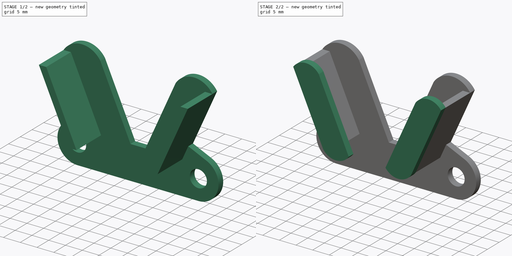
[diagram: build sequence overview — one tinted view per stage of 2, left to right]
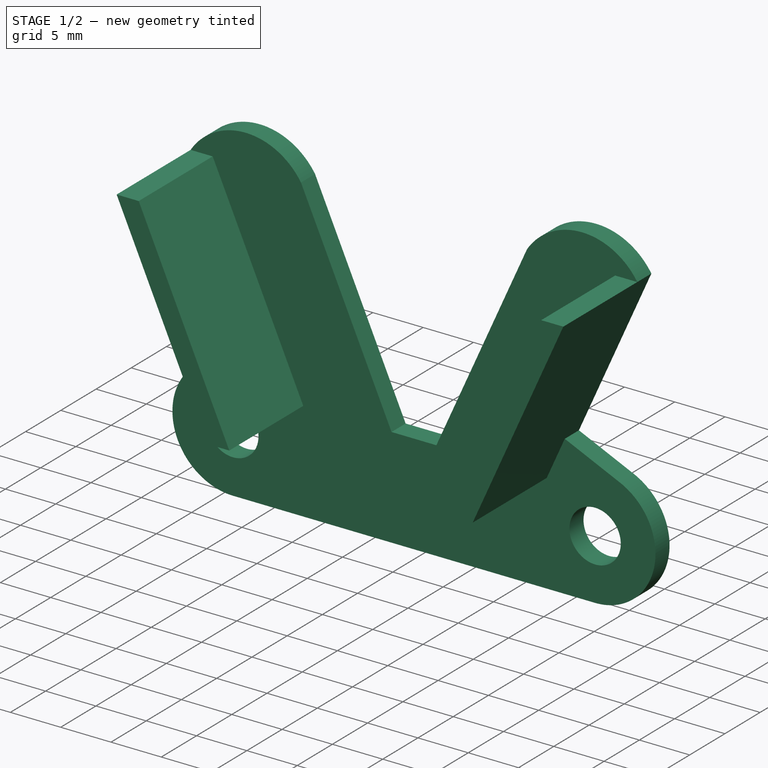
[diagram: stage 1 of 2 — iso view after this stage's code; geometry added in this stage tinted green]
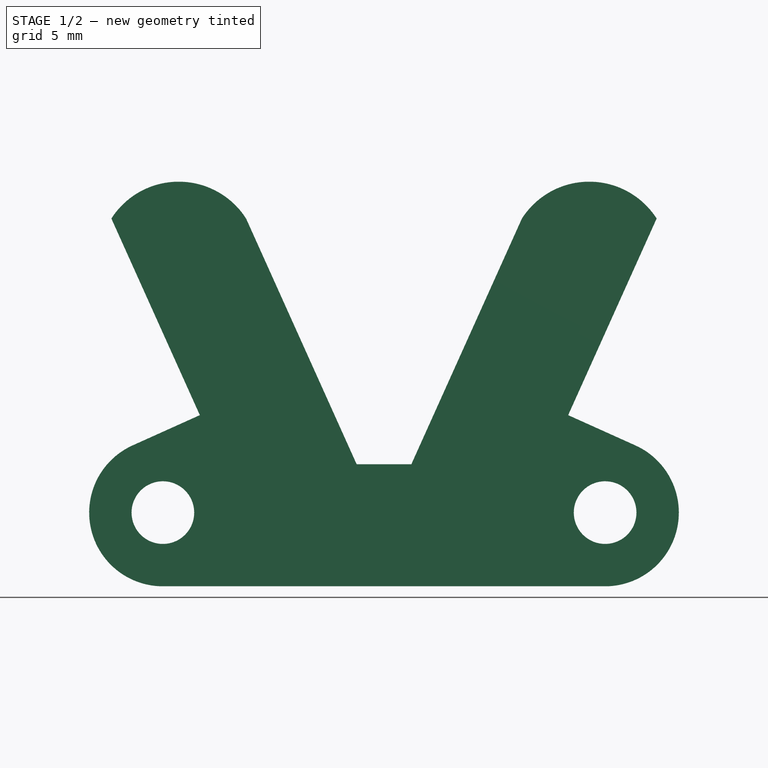
[diagram: stage 1 of 2 — front view after this stage's code; geometry added in this stage tinted green]
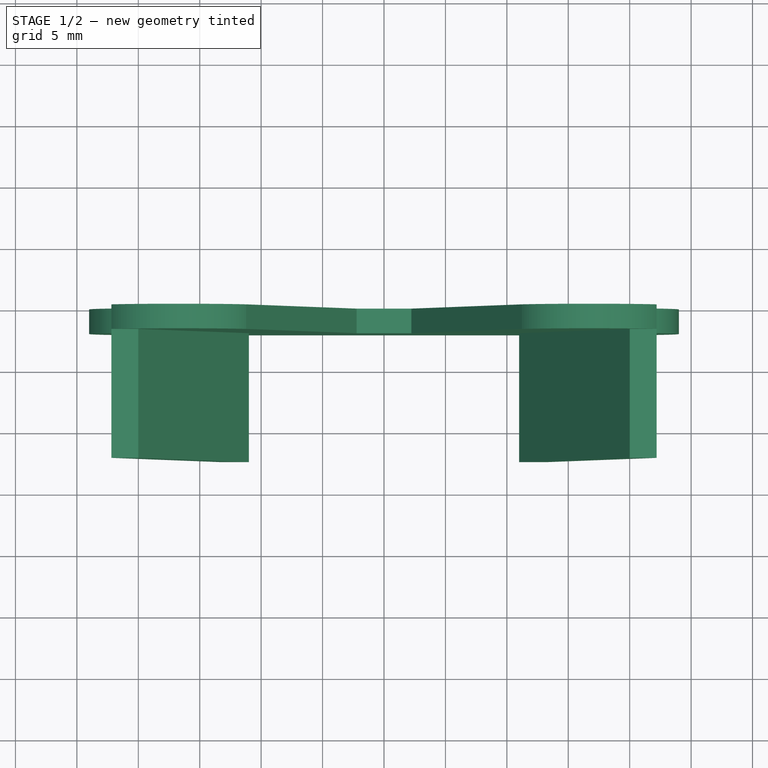
[diagram: stage 1 of 2 — top view after this stage's code; geometry added in this stage tinted green]
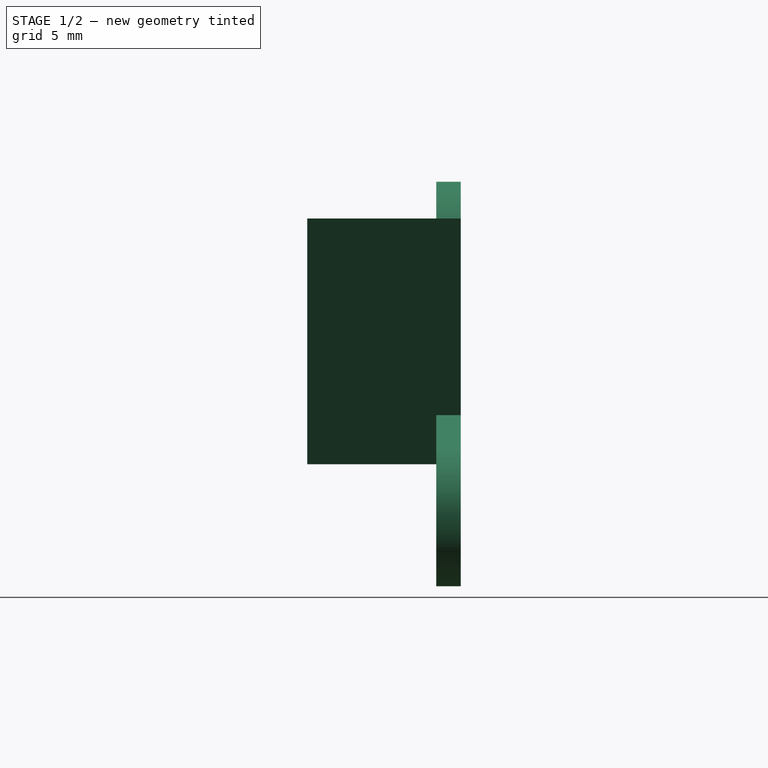
[diagram: stage 1 of 2 — right view after this stage's code; geometry added in this stage tinted green]
FCSTD DOCUMENT  (FreeCAD 0.20R29603 (Git))
Label: plier
License: All rights reserved
LicenseURL: http://en.wikipedia.org/wiki/All_rights_reserved
objects: Sketcher::SketchObject×3, PartDesign::Pad×3, PartDesign::Body×1
note: 10 computed .brp shape members not serialized (recipe doc carries the construction recipe); baked Part::Feature solids carry a one-line shape summary decoded from their .brp

FEATURE [Sketcher::SketchObject] Sketch
  FullyConstrained = false
  MapMode = 5
  Placement = pos=(0,0,0) rot=(1,0,0;1.5708rad)
  Support = -> [XZ_Plane]
  sketch-geometry (22):
    g0: Circle CenterX=-18 CenterY=-3.9393 CenterZ=0 NormalX=0 NormalY=0 NormalZ=1 AngleXU=0 Radius=2.55
    g1: LineSegment StartX=-20 StartY=20 StartZ=0 EndX=-11 EndY=0 EndZ=0
    g2: LineSegment StartX=20 StartY=20 StartZ=0 EndX=11 EndY=0 EndZ=0
    g3: LineSegment StartX=-27.6082 StartY=20 StartZ=0 EndX=29.7544 EndY=20 EndZ=0
    g4: LineSegment StartX=-22.1932 StartY=20 StartZ=0 EndX=-14.9907 EndY=3.99442 EndZ=0
    g5: LineSegment StartX=22.1932 StartY=20 StartZ=0 EndX=14.9907 EndY=3.99442 EndZ=0
    g6: LineSegment StartX=-11.2273 StartY=20 StartZ=0 EndX=-2.22732 EndY=0 EndZ=0
    g7: LineSegment StartX=11.2273 StartY=20 StartZ=0 EndX=2.22732 EndY=0 EndZ=0
    g8: LineSegment StartX=-30.9396 StartY=23 StartZ=0 EndX=29.7544 EndY=23 EndZ=0
    g9: ArcOfCircle CenterX=-16.7102 CenterY=16.4896 CenterZ=0 NormalX=0 NormalY=0 NormalZ=1 AngleXU=0 Radius=6.51042 StartAngle=0.569487 EndAngle=2.57211
    g10: ArcOfCircle CenterX=16.7102 CenterY=16.4896 CenterZ=0 NormalX=0 NormalY=0 NormalZ=1 AngleXU=0 Radius=6.51042 StartAngle=0.569487 EndAngle=2.57211
    g11: LineSegment StartX=-2.22732 StartY=0 StartZ=0 EndX=2.22732 EndY=0 EndZ=0
    g12: Circle CenterX=18 CenterY=-3.9393 CenterZ=0 NormalX=0 NormalY=0 NormalZ=1 AngleXU=0 Radius=2.55
    g13: LineSegment StartX=-14.9907 StartY=3.99442 StartZ=0 EndX=-20.4622 EndY=1.53223 EndZ=0
    g14: LineSegment StartX=-18 StartY=-9.9393 StartZ=0 EndX=18 EndY=-9.9393 EndZ=0
    g15: LineSegment StartX=-18 StartY=-3.9393 StartZ=0 EndX=-18 EndY=-21.2592 EndZ=0
    g16: LineSegment StartX=14.9907 StartY=3.99442 StartZ=0 EndX=20.4622 EndY=1.53223 EndZ=0
    g17: LineSegment StartX=29.7544 StartY=24.2232 StartZ=0 EndX=29.7544 EndY=18.0043 EndZ=0
    g18: ArcOfCircle CenterX=-18 CenterY=-3.9393 CenterZ=0 NormalX=0 NormalY=0 NormalZ=1 AngleXU=0 Radius=6 StartAngle=1.99365 EndAngle=4.71239
    g19: ArcOfCircle CenterX=18 CenterY=-3.9393 CenterZ=0 NormalX=0 NormalY=0 NormalZ=1 AngleXU=0 Radius=6 StartAngle=4.71239 EndAngle=7.43113
    g20: LineSegment StartX=-18 StartY=-3.9393 StartZ=0 EndX=-20.4622 EndY=1.53223 EndZ=0
    g21: LineSegment StartX=18 StartY=-3.9393 StartZ=0 EndX=20.4622 EndY=1.53223 EndZ=0
  constraints (64):
    c: Distance(g1,g2) = 22
    c: Distance(g1,g2) = 40
    c: Horizontal(g3)
    c: PointOnObject(g1,g3)
    c: PointOnObject(g2,g3)
    c: PointOnObject(g2,g-1)
    c: PointOnObject(g1,g-1)
    c: Distance(g3,g-1) = 20
    c: Distance(g1,g-2) = 11
    c: Distance(g1,g-2) = 20
    c: PointOnObject(g5,g3)
    c: PointOnObject(g4,g3)
    c: Parallel(g4,g1)
    c: Parallel(g5,g2)
    c: Distance(g6,g4) = 10
    c: Parallel(g6,g4)
    c: PointOnObject(g6,g3)
    c: PointOnObject(g6,g-1)
    c: PointOnObject(g7,g-1)
    c: PointOnObject(g7,g3)
    c: Parallel(g7,g2)
    c: Coincident(g9,g6)
    c: Coincident(g9,g4)
    c: Tangent(g9,g8)
    c: Coincident(g10,g7)
    c: Coincident(g10,g5)
    c: Tangent(g10,g8)
    c: Horizontal(g8)
    c: Distance(g8,g3) = 3
    c: Diameter(g12) = 5.1
    c: Diameter(g0) = 5.1
    c: Horizontal(g12,g0)
    c: DistanceX(g0,g12) = 36
    c: Horizontal(g14)
    c: Perpendicular(g2,g16)
    c: Coincident(g15,g0)
    c: Vertical(g15)
    c: PointOnObject(g14,g15)
    c: Coincident(g5,g16)
    c: Vertical(g17)
    c: PointOnObject(g8,g17)
    c: PointOnObject(g3,g17)
    c: Perpendicular(g4,g13) = 4.71239
    c: Coincident(g18,g13)
    c: Coincident(g18,g14)
    c: Coincident(g18,g0)
    c: Distance(g4,g1) = 2
    c: Distance(g5,g2) = 2
    c: Distance(g5,g7) = 10
    c: Coincident(g6,g11)
    c: Coincident(g7,g11)
    c: Coincident(g14,g19)
    c: Parallel(g20,g1)
    c: Coincident(g13,g20)
    c: Distance(g20) = 6
    c: Coincident(g20,g18)
    c: Coincident(g16,g19)
    c: Coincident(g21,g12)
    c: Coincident(g21,g16)
    c: Parallel(g21,g2)
    c: Distance(g21,g-2) = 18
    c: Distance(g21) = 6
    c: Coincident(g19,g21)
    c: Distance(g19,g5) = 6
FEATURE [PartDesign::Pad] Pad
  Direction = (0,-1,2e-16)
  Length = 2
  Length2 = 10
  Placement = pos=(0,0,0) rot=(1,0,0;1.5708rad)
  Profile = -> Sketch
  ReferenceAxis = -> Sketch [N_Axis]
  Type = 0
FEATURE [Sketcher::SketchObject] Sketch001
  FullyConstrained = false
  MapMode = 5
  Placement = pos=(0,-2,4e-16) rot=(1,0,0;1.5708rad)
  Support = -> [Pad]
  sketch-geometry (9):
    g0: LineSegment StartX=-20 StartY=20 StartZ=0 EndX=-11 EndY=0 EndZ=0
    g1: LineSegment StartX=20 StartY=20 StartZ=0 EndX=11 EndY=0 EndZ=0
    g2: LineSegment StartX=-30.8932 StartY=20 StartZ=0 EndX=26.982 EndY=20 EndZ=0
    g3: LineSegment StartX=-22.1932 StartY=20 StartZ=0 EndX=-13.1932 EndY=0 EndZ=0
    g4: LineSegment StartX=22.1932 StartY=20 StartZ=0 EndX=13.1932 EndY=0 EndZ=0
    g5: LineSegment StartX=-22.1932 StartY=20 StartZ=0 EndX=-20 EndY=20 EndZ=0
    g6: LineSegment StartX=20 StartY=20 StartZ=0 EndX=22.1932 EndY=20 EndZ=0
    g7: LineSegment StartX=-13.1932 StartY=0 StartZ=0 EndX=-11 EndY=0 EndZ=0
    g8: LineSegment StartX=11 StartY=0 StartZ=0 EndX=13.1932 EndY=0 EndZ=0
  constraints (26):
    c: Distance(g0,g1) = 22
    c: Distance(g0,g1) = 40
    c: Horizontal(g2)
    c: PointOnObject(g0,g2)
    c: PointOnObject(g1,g2)
    c: PointOnObject(g1,g-1)
    c: PointOnObject(g0,g-1)
    c: Distance(g2,g-1) = 20
    c: Distance(g0,g-2) = 11
    c: Distance(g0,g-2) = 20
    c: PointOnObject(g3,g2)
    c: PointOnObject(g4,g2)
    c: PointOnObject(g4,g-1)
    c: PointOnObject(g3,g-1)
    c: Distance(g3,g0) = 2
    c: Distance(g4,g1) = 2
    c: Parallel(g3,g0)
    c: Parallel(g4,g1)
    c: Coincident(g5,g0)
    c: Coincident(g5,g3)
    c: Coincident(g6,g1)
    c: Coincident(g6,g4)
    c: Coincident(g7,g3)
    c: Coincident(g7,g0)
    c: Coincident(g8,g1)
    c: Coincident(g8,g4)
FEATURE [PartDesign::Pad] Pad001
  BaseFeature = -> Pad
  Direction = (0,-1,2e-16)
  Length = 10.5
  Length2 = 10
  Placement = pos=(0,0,0) rot=(1,0,0;1.5708rad)
  Profile = -> Sketch001
  ReferenceAxis = -> Sketch001 [N_Axis]
  Type = 0
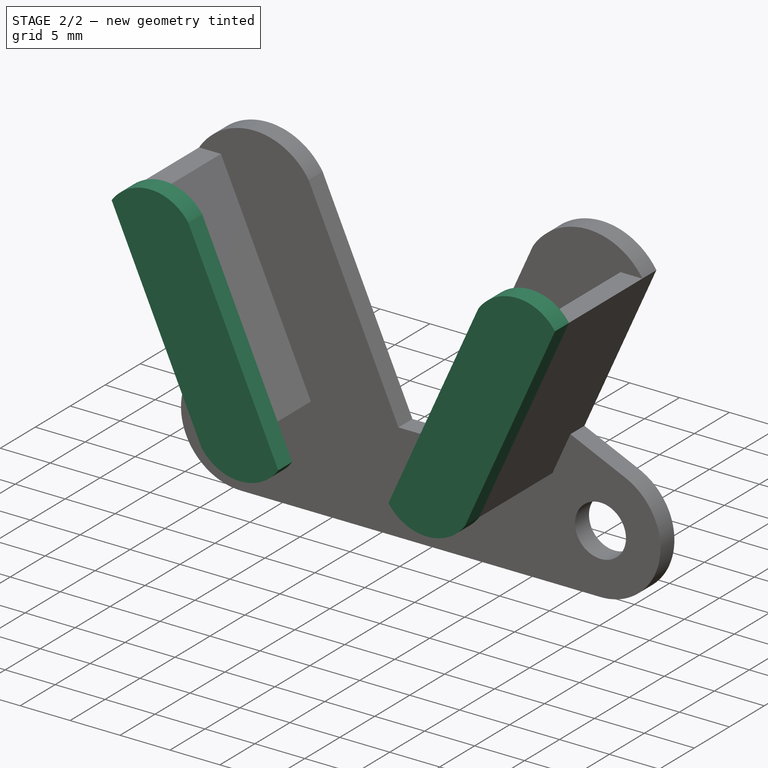
[diagram: stage 2 of 2 — iso view after this stage's code; geometry added in this stage tinted green]
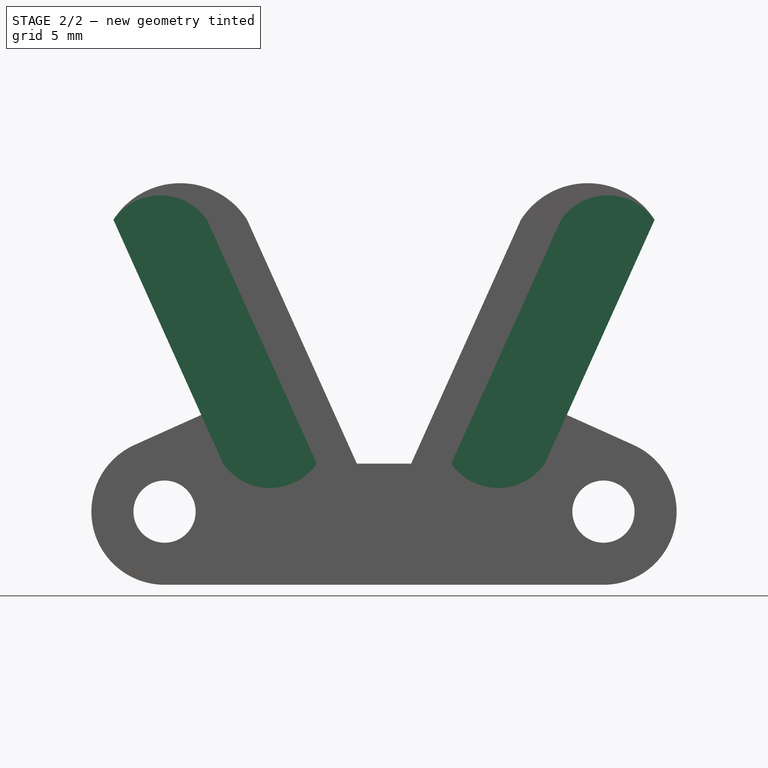
[diagram: stage 2 of 2 — front view after this stage's code; geometry added in this stage tinted green]
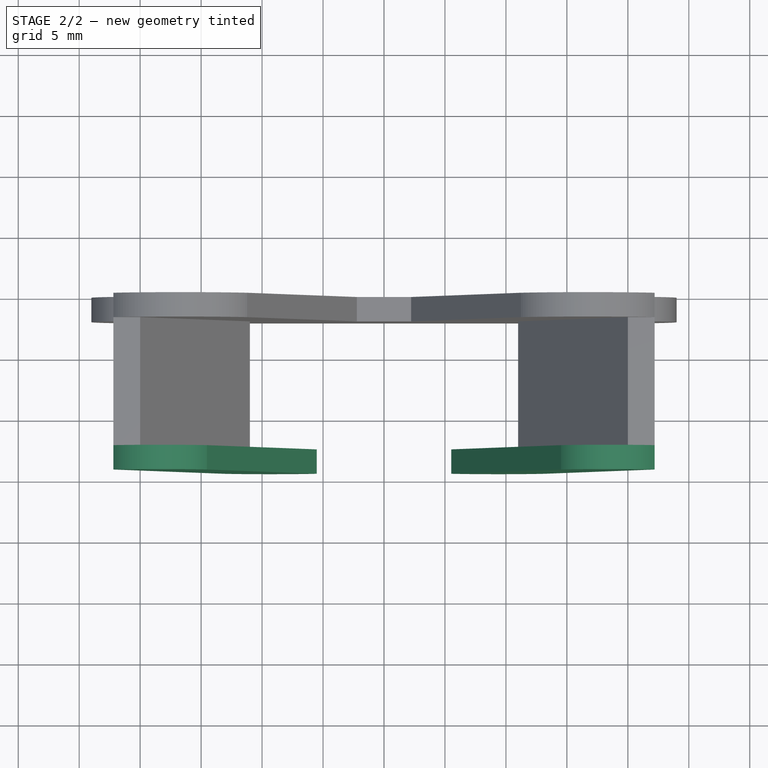
[diagram: stage 2 of 2 — top view after this stage's code; geometry added in this stage tinted green]
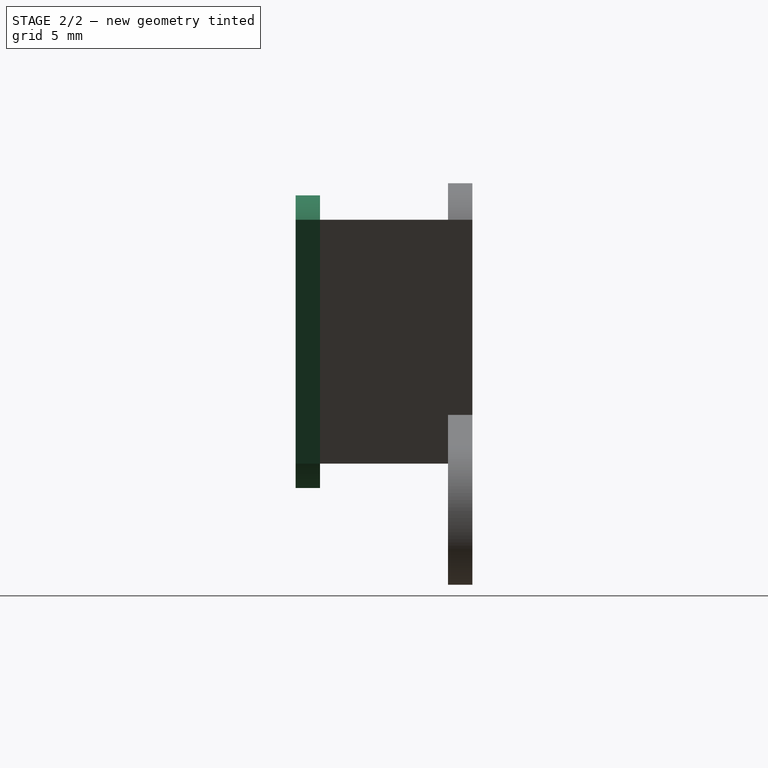
[diagram: stage 2 of 2 — right view after this stage's code; geometry added in this stage tinted green]
FEATURE [Sketcher::SketchObject] Sketch002
  FullyConstrained = false
  MapMode = 5
  Placement = pos=(0,-12.5,2.8e-15) rot=(1,0,0;1.5708rad)
  Support = -> [Pad001]
  sketch-geometry (14):
    g0: LineSegment StartX=-30.1767 StartY=20 StartZ=0 EndX=27.2113 EndY=20 EndZ=0
    g1: LineSegment StartX=-30.1767 StartY=0 StartZ=0 EndX=27.2113 EndY=0 EndZ=0
    g2: LineSegment StartX=-30.1767 StartY=22 StartZ=0 EndX=27.2113 EndY=22 EndZ=0
    g3: LineSegment StartX=-30.1767 StartY=-2 StartZ=0 EndX=27.2113 EndY=-2 EndZ=0
    g4: LineSegment StartX=-22.1932 StartY=20 StartZ=0 EndX=-13.1932 EndY=0 EndZ=0
    g5: LineSegment StartX=-20 StartY=20 StartZ=0 EndX=-11 EndY=0 EndZ=0
    g6: LineSegment StartX=20 StartY=20 StartZ=0 EndX=11 EndY=0 EndZ=0
    g7: LineSegment StartX=22.1932 StartY=20 StartZ=0 EndX=13.1932 EndY=-1.6556e-12 EndZ=0
    g8: LineSegment StartX=-14.5171 StartY=20 StartZ=0 EndX=-5.51707 EndY=0 EndZ=0
    g9: LineSegment StartX=14.5171 StartY=20 StartZ=0 EndX=5.51707 EndY=-1.6556e-12 EndZ=0
    g10: ArcOfCircle CenterX=-18.3551 CenterY=17.3173 CenterZ=0 NormalX=0 NormalY=0 NormalZ=1 AngleXU=0 Radius=4.68266 StartAngle=0.61003 EndAngle=2.53156
    g11: ArcOfCircle CenterX=18.3551 CenterY=17.3173 CenterZ=0 NormalX=0 NormalY=0 NormalZ=1 AngleXU=0 Radius=4.68266 StartAngle=0.61003 EndAngle=2.53156
    g12: ArcOfCircle CenterX=-9.35512 CenterY=2.68266 CenterZ=0 NormalX=0 NormalY=0 NormalZ=1 AngleXU=0 Radius=4.68266 StartAngle=3.75162 EndAngle=5.67316
    g13: ArcOfCircle CenterX=9.35512 CenterY=2.68266 CenterZ=0 NormalX=0 NormalY=0 NormalZ=1 AngleXU=0 Radius=4.68266 StartAngle=3.75162 EndAngle=5.67316
  constraints (50):
    c: Horizontal(g2)
    c: Horizontal(g0)
    c: Horizontal(g1)
    c: Horizontal(g3)
    c: Vertical(g1,g3)
    c: Vertical(g3,g0)
    c: Vertical(g0,g2)
    c: Vertical(g0,g1)
    c: Vertical(g1,g2)
    c: Vertical(g2,g3)
    c: Parallel(g4,g5)
    c: Parallel(g6,g7)
    c: PointOnObject(g7,g0)
    c: PointOnObject(g6,g0)
    c: PointOnObject(g5,g0)
    c: PointOnObject(g4,g0)
    c: PointOnObject(g4,g1)
    c: PointOnObject(g5,g1)
    c: PointOnObject(g6,g1)
    c: PointOnObject(g7,g1)
    c: Distance(g0,g-1) = 20
    c: PointOnObject(g1,g-1)
    c: DistanceX(g5,g6) = 22
    c: DistanceX(g5,g-1) = 11
    c: DistanceX(g5,g6) = 40
    c: Distance(g5,g-2) = 20
    c: Distance(g4,g5) = 2
    c: Distance(g7,g6) = 2
    c: Distance(g6,g9) = 5
    c: Distance(g5,g8) = 5
    c: PointOnObject(g9,g0)
    c: PointOnObject(g8,g0)
    c: PointOnObject(g8,g1)
    c: PointOnObject(g9,g1)
    c: Parallel(g9,g6)
    c: Parallel(g8,g5)
    c: Coincident(g11,g9)
    c: Coincident(g11,g7)
    c: Coincident(g10,g8)
    c: Coincident(g10,g4)
    c: Tangent(g10,g2)
    c: Tangent(g11,g2)
    c: Distance(g2,g0) = 2
    c: Coincident(g13,g9)
    c: Coincident(g13,g7)
    c: Coincident(g12,g8)
    c: Coincident(g12,g4)
    c: Distance(g3,g-1) = 2
    c: Tangent(g12,g3)
    c: Tangent(g13,g3)
FEATURE [PartDesign::Pad] Pad002
  BaseFeature = -> Pad001
  Direction = (0,-1,2e-16)
  Length = 2
  Length2 = 10
  Placement = pos=(0,0,0) rot=(1,0,0;1.5708rad)
  Profile = -> Sketch002
  ReferenceAxis = -> Sketch002 [N_Axis]
  Type = 0
FEATURE [PartDesign::Body] Body
  Group = -> [Sketch,Sketch001,Pad,Pad001,Sketch002,Pad002]
  Origin = -> Origin
  Tip = -> Pad002
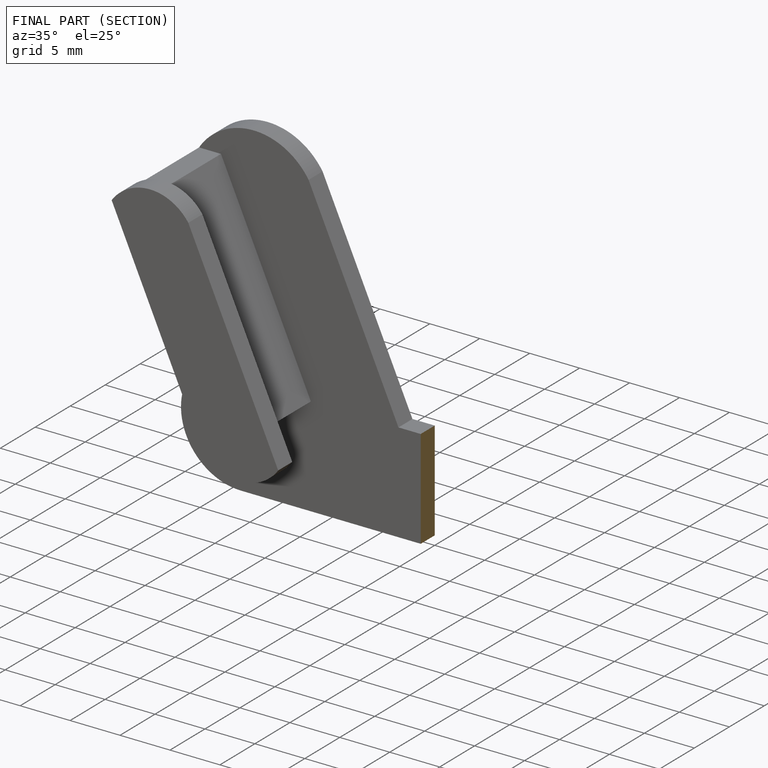
[diagram: finished part — half-section view (interior)]
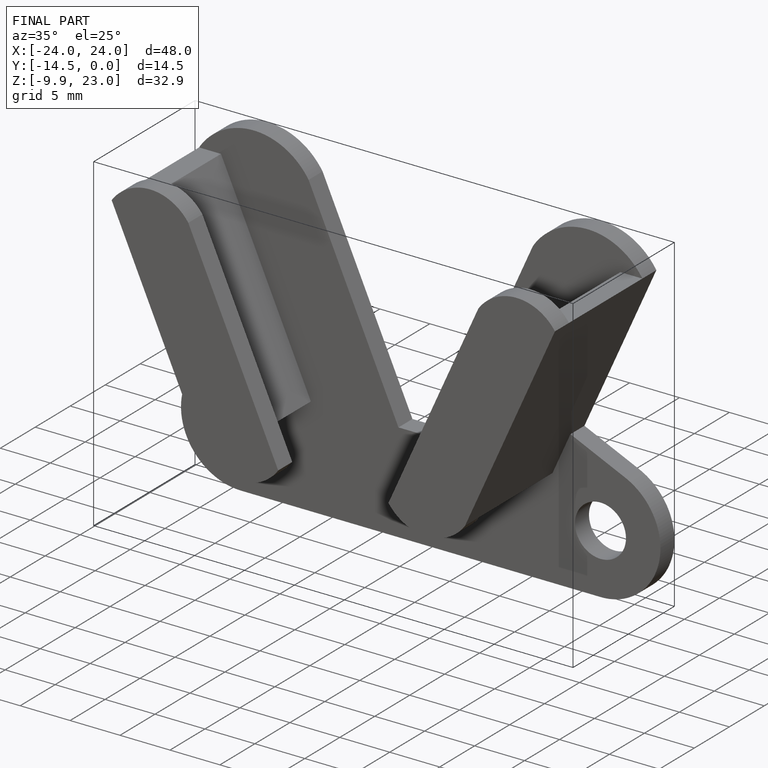
[diagram: finished part — iso view with bounding-box wireframe]
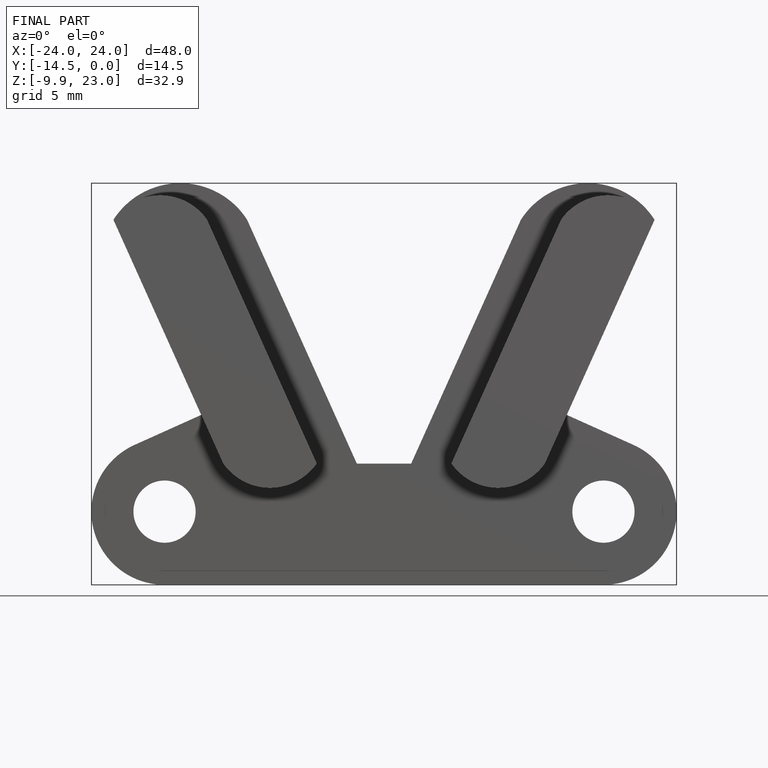
[diagram: finished part — front view with bounding-box wireframe]
